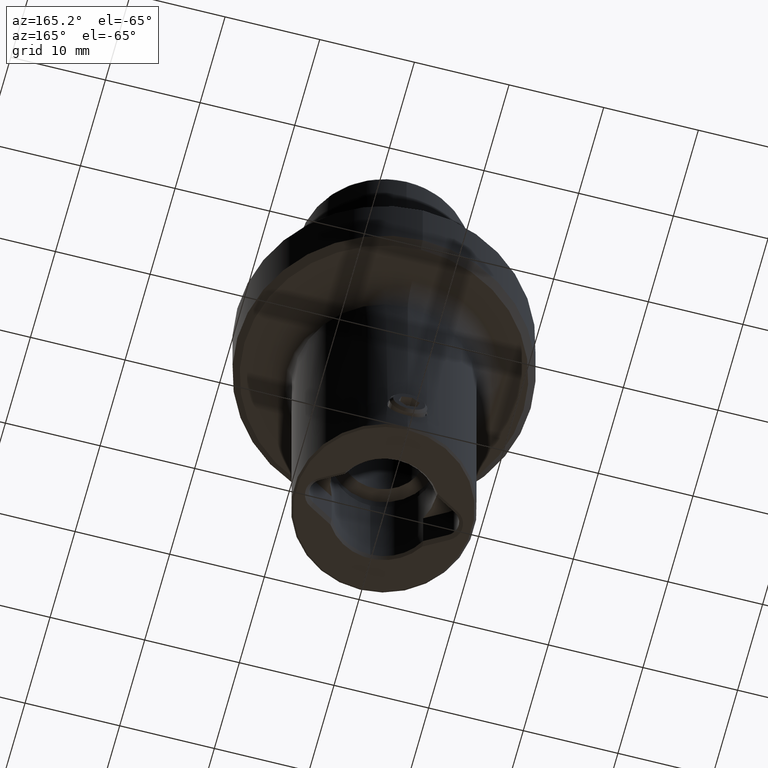
[diagram: clean part render]
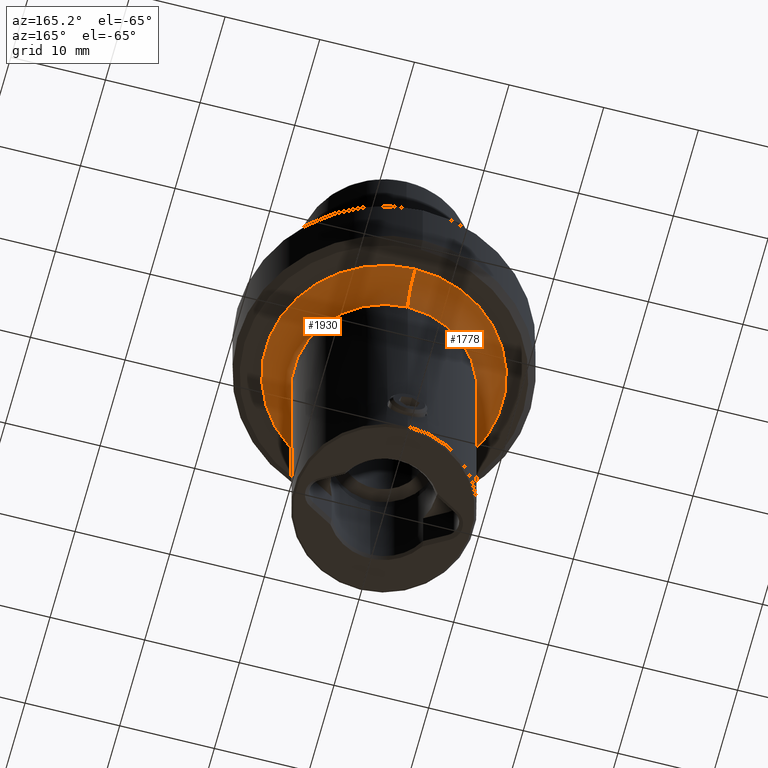
[diagram: same view with one multi-face feature highlighted, each face labeled with its STEP entity id]
A machine part, auxiliary view. The highlighted faces form ONE feature: a constant-radius fillet chain: 2 tangent blend faces with common blend radius 3 mm. The faces share edges in the B-rep.
Their STEP definitions:
[1] entity #1778 (Torus):
#974=VERTEX_POINT('NONE',#2316);
#990=VERTEX_POINT('NONE',#2334);
#1408=EDGE_CURVE('NONE',#1720,#1862,#2798,.T.);
#1468=EDGE_CURVE('NONE',#1862,#974,#2865,.F.);
#1630=EDGE_CURVE('NONE',#990,#974,#3049,.T.);
#1720=VERTEX_POINT('NONE',#3151);
#1778=ADVANCED_FACE('NONE',(#3216),#3217,.F.);
#1862=VERTEX_POINT('NONE',#3310);
#1968=EDGE_CURVE('NONE',#1720,#990,#3428,.T.);
#2316=CARTESIAN_POINT('',(-1.34706698920462E-015,-9.5,-11.375));
#2334=CARTESIAN_POINT('',(-1.53075794227797E-015,-12.5,-8.37499999999998));
#2798=CIRCLE('',#5108,3.0);
#2865=CIRCLE('',#5203,9.5);
#3049=CIRCLE('',#5560,3.0);
#3151=CARTESIAN_POINT('',(0.0,12.5,-8.37499999999998));
#3216=FACE_OUTER_BOUND('',#5878,.T.);
#3217=TOROIDAL_SURFACE('',#5879,12.5,3.0);
#3310=CARTESIAN_POINT('',(0.0,9.5,-11.375));
#3428=CIRCLE('',#6323,12.5);
#5108=AXIS2_PLACEMENT_3D('',#7280,#7281,#7282);
#5203=AXIS2_PLACEMENT_3D('',#7364,#7365,#7366);
#5560=AXIS2_PLACEMENT_3D('',#7599,#7600,#7601);
#5878=EDGE_LOOP('',(#7831,#7832,#7833,#7834));
#5879=AXIS2_PLACEMENT_3D('',#7835,#7836,#7837);
#6323=AXIS2_PLACEMENT_3D('',#8118,#8119,#8120);
#7280=CARTESIAN_POINT('',(0.0,12.5,-11.375));
#7281=DIRECTION('',(1.0,0.0,0.0));
#7282=DIRECTION('',(0.0,-1.0,0.0));
#7364=CARTESIAN_POINT('',(0.0,0.0,-11.375));
#7365=DIRECTION('',(0.0,0.0,-1.0));
#7366=DIRECTION('',(0.0,1.0,0.0));
#7599=CARTESIAN_POINT('',(-1.53075794227797E-015,-12.5,-11.375));
#7600=DIRECTION('',(-1.0,1.22460635382238E-016,0.0));
#7601=DIRECTION('',(1.22460635382238E-016,1.0,0.0));
#7831=ORIENTED_EDGE('',*,*,#1630,.F.);
#7832=ORIENTED_EDGE('',*,*,#1968,.F.);
#7833=ORIENTED_EDGE('',*,*,#1408,.T.);
#7834=ORIENTED_EDGE('',*,*,#1468,.T.);
#7835=CARTESIAN_POINT('',(0.0,0.0,-11.375));
#7836=DIRECTION('',(0.0,-0.0,1.0));
#7837=DIRECTION('',(0.0,1.0,0.0));
#8118=CARTESIAN_POINT('',(0.0,0.0,-8.37499999999998));
#8119=DIRECTION('',(-0.0,0.0,1.0));
#8120=DIRECTION('',(0.0,1.0,0.0));
[2] entity #1930 (Torus):
#790=EDGE_CURVE('NONE',#974,#1862,#2110,.F.);
#974=VERTEX_POINT('NONE',#2316);
#990=VERTEX_POINT('NONE',#2334);
#1408=EDGE_CURVE('NONE',#1720,#1862,#2798,.T.);
#1630=EDGE_CURVE('NONE',#990,#974,#3049,.T.);
#1720=VERTEX_POINT('NONE',#3151);
#1862=VERTEX_POINT('NONE',#3310);
#1886=EDGE_CURVE('NONE',#990,#1720,#3336,.T.);
#1930=ADVANCED_FACE('NONE',(#3385),#3386,.F.);
#2110=CIRCLE('',#3735,9.5);
#2316=CARTESIAN_POINT('',(-1.34706698920462E-015,-9.5,-11.375));
#2334=CARTESIAN_POINT('',(-1.53075794227797E-015,-12.5,-8.37499999999998));
#2798=CIRCLE('',#5108,3.0);
#3049=CIRCLE('',#5560,3.0);
#3151=CARTESIAN_POINT('',(0.0,12.5,-8.37499999999998));
#3310=CARTESIAN_POINT('',(0.0,9.5,-11.375));
#3336=CIRCLE('',#6195,12.5);
#3385=FACE_OUTER_BOUND('',#6262,.T.);
#3386=TOROIDAL_SURFACE('',#6263,12.5,3.0);
#3735=AXIS2_PLACEMENT_3D('',#6440,#6441,#6442);
#5108=AXIS2_PLACEMENT_3D('',#7280,#7281,#7282);
#5560=AXIS2_PLACEMENT_3D('',#7599,#7600,#7601);
#6195=AXIS2_PLACEMENT_3D('',#7992,#7993,#7994);
#6262=EDGE_LOOP('',(#8066,#8067,#8068,#8069));
#6263=AXIS2_PLACEMENT_3D('',#8070,#8071,#8072);
#6440=CARTESIAN_POINT('',(0.0,0.0,-11.375));
#6441=DIRECTION('',(0.0,0.0,-1.0));
#6442=DIRECTION('',(0.0,1.0,0.0));
#7280=CARTESIAN_POINT('',(0.0,12.5,-11.375));
#7281=DIRECTION('',(1.0,0.0,0.0));
#7282=DIRECTION('',(0.0,-1.0,0.0));
#7599=CARTESIAN_POINT('',(-1.53075794227797E-015,-12.5,-11.375));
#7600=DIRECTION('',(-1.0,1.22460635382238E-016,0.0));
#7601=DIRECTION('',(1.22460635382238E-016,1.0,0.0));
#7992=CARTESIAN_POINT('',(0.0,0.0,-8.37499999999998));
#7993=DIRECTION('',(-0.0,0.0,1.0));
#7994=DIRECTION('',(0.0,1.0,0.0));
#8066=ORIENTED_EDGE('',*,*,#1886,.F.);
#8067=ORIENTED_EDGE('',*,*,#1630,.T.);
#8068=ORIENTED_EDGE('',*,*,#790,.T.);
#8069=ORIENTED_EDGE('',*,*,#1408,.F.);
#8070=CARTESIAN_POINT('',(0.0,0.0,-11.375));
#8071=DIRECTION('',(0.0,-0.0,1.0));
#8072=DIRECTION('',(0.0,1.0,0.0));